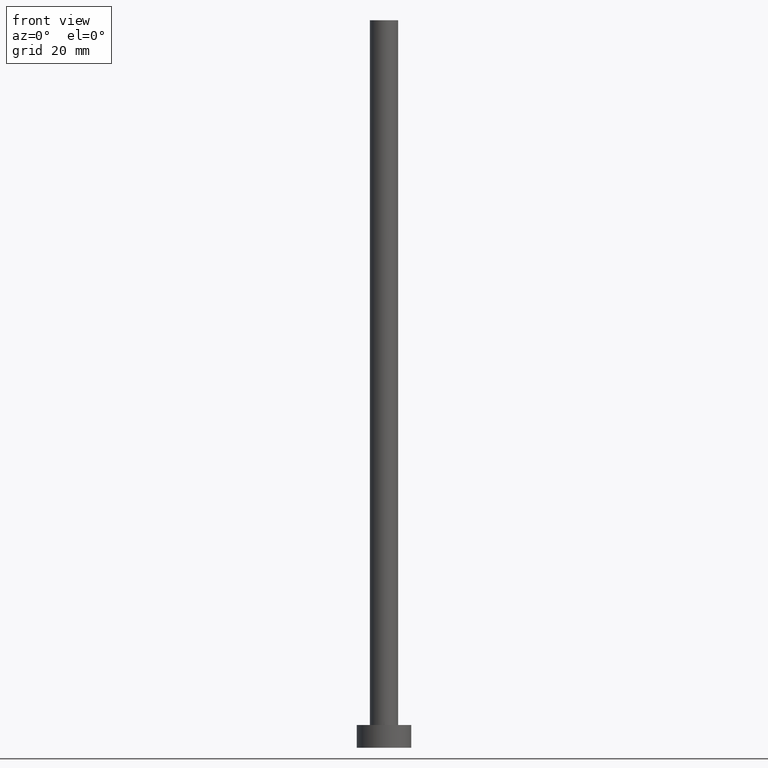
[diagram: clean part render]
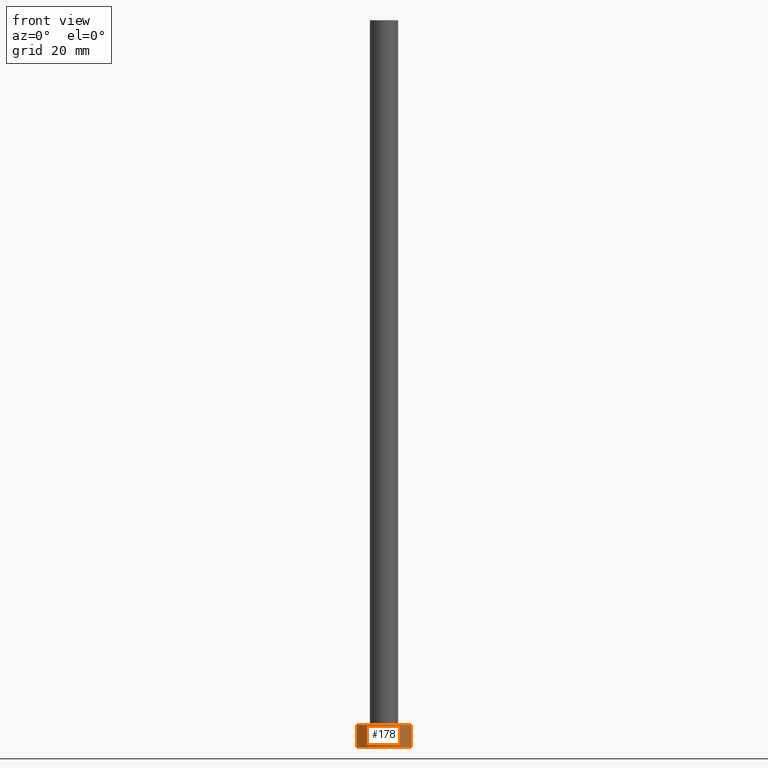
[diagram: same view with one face highlighted and labeled with its STEP entity id]
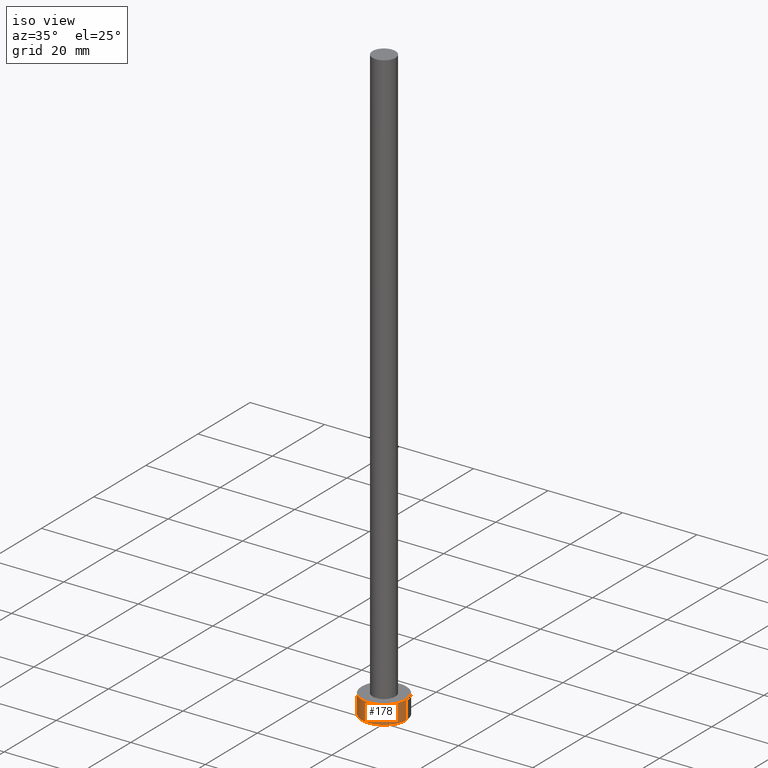
[diagram: same view with one face highlighted and labeled with its STEP entity id]
A machine part, front view. The second image highlights one B-rep face of the part: STEP entity #178.
A second angle (iso view) of the same face is appended — the face is thin or edge-on in the first view.
In plain terms, the highlighted cylindrical surface (edge-blend (fillet) strip) has radius 6 mm, axis along (-0, -0, -1).
Its self-contained STEP definition (entity closure, byte-faithful):
#3 = AXIS2_PLACEMENT_3D ( 'NONE', #29, #26, #70 ) ;
#11 = CARTESIAN_POINT ( 'NONE',  ( 6.000000000000000888, 7.347880794884120722E-16, 5.000000000000000000 ) ) ;
#16 = VERTEX_POINT ( 'NONE', #190 ) ;
#26 = DIRECTION ( 'NONE',  ( 0.000000000000000000, 0.000000000000000000, 1.000000000000000000 ) ) ;
#29 = CARTESIAN_POINT ( 'NONE',  ( 0.000000000000000000, 0.000000000000000000, 0.000000000000000000 ) ) ;
#32 = ORIENTED_EDGE ( 'NONE', *, *, #84, .T. ) ;
#53 = EDGE_LOOP ( 'NONE', ( #250, #111, #212, #32 ) ) ;
#55 = EDGE_CURVE ( 'NONE', #176, #196, #64, .T. ) ;
#64 = CIRCLE ( 'NONE', #238, 6.000000000000000888 ) ;
#70 = DIRECTION ( 'NONE',  ( 1.000000000000000000, 0.000000000000000000, 0.000000000000000000 ) ) ;
#72 = LINE ( 'NONE', #211, #82 ) ;
#82 = VECTOR ( 'NONE', #175, 1000.000000000000000 ) ;
#84 = EDGE_CURVE ( 'NONE', #216, #16, #122, .T. ) ;
#85 = DIRECTION ( 'NONE',  ( 1.000000000000000000, 0.000000000000000000, 0.000000000000000000 ) ) ;
#106 = DIRECTION ( 'NONE',  ( 0.000000000000000000, 0.000000000000000000, 1.000000000000000000 ) ) ;
#108 = CARTESIAN_POINT ( 'NONE',  ( 0.000000000000000000, 0.000000000000000000, 5.000000000000000000 ) ) ;
#110 = DIRECTION ( 'NONE',  ( -0.000000000000000000, -0.000000000000000000, -1.000000000000000000 ) ) ;
#111 = ORIENTED_EDGE ( 'NONE', *, *, #55, .F. ) ;
#113 = DIRECTION ( 'NONE',  ( -1.000000000000000000, 0.000000000000000000, 0.000000000000000000 ) ) ;
#122 = CIRCLE ( 'NONE', #3, 6.000000000000000888 ) ;
#125 = EDGE_CURVE ( 'NONE', #196, #16, #232, .T. ) ;
#149 = CARTESIAN_POINT ( 'NONE',  ( -6.000000000000000888, 0.000000000000000000, 0.000000000000000000 ) ) ;
#170 = CARTESIAN_POINT ( 'NONE',  ( -6.000000000000000888, 0.000000000000000000, 5.000000000000000000 ) ) ;
#175 = DIRECTION ( 'NONE',  ( -0.000000000000000000, -0.000000000000000000, -1.000000000000000000 ) ) ;
#176 = VERTEX_POINT ( 'NONE', #170 ) ;
#178 = ADVANCED_FACE ( 'NONE', ( #213 ), #208, .T. ) ;
#190 = CARTESIAN_POINT ( 'NONE',  ( 6.000000000000000888, 7.347880794884120722E-16, 0.000000000000000000 ) ) ;
#196 = VERTEX_POINT ( 'NONE', #11 ) ;
#204 = EDGE_CURVE ( 'NONE', #176, #216, #72, .T. ) ;
#208 = CYLINDRICAL_SURFACE ( 'NONE', #241, 6.000000000000000888 ) ;
#211 = CARTESIAN_POINT ( 'NONE',  ( -6.000000000000000888, 0.000000000000000000, 5.000000000000000000 ) ) ;
#212 = ORIENTED_EDGE ( 'NONE', *, *, #204, .T. ) ;
#213 = FACE_OUTER_BOUND ( 'NONE', #53, .T. ) ;
#216 = VERTEX_POINT ( 'NONE', #149 ) ;
#232 = LINE ( 'NONE', #244, #254 ) ;
#238 = AXIS2_PLACEMENT_3D ( 'NONE', #243, #106, #85 ) ;
#241 = AXIS2_PLACEMENT_3D ( 'NONE', #108, #249, #113 ) ;
#243 = CARTESIAN_POINT ( 'NONE',  ( 0.000000000000000000, 0.000000000000000000, 5.000000000000000000 ) ) ;
#244 = CARTESIAN_POINT ( 'NONE',  ( 6.000000000000000888, 7.347880794884120722E-16, 5.000000000000000000 ) ) ;
#249 = DIRECTION ( 'NONE',  ( -0.000000000000000000, -0.000000000000000000, -1.000000000000000000 ) ) ;
#250 = ORIENTED_EDGE ( 'NONE', *, *, #125, .F. ) ;
#254 = VECTOR ( 'NONE', #110, 1000.000000000000000 ) ;